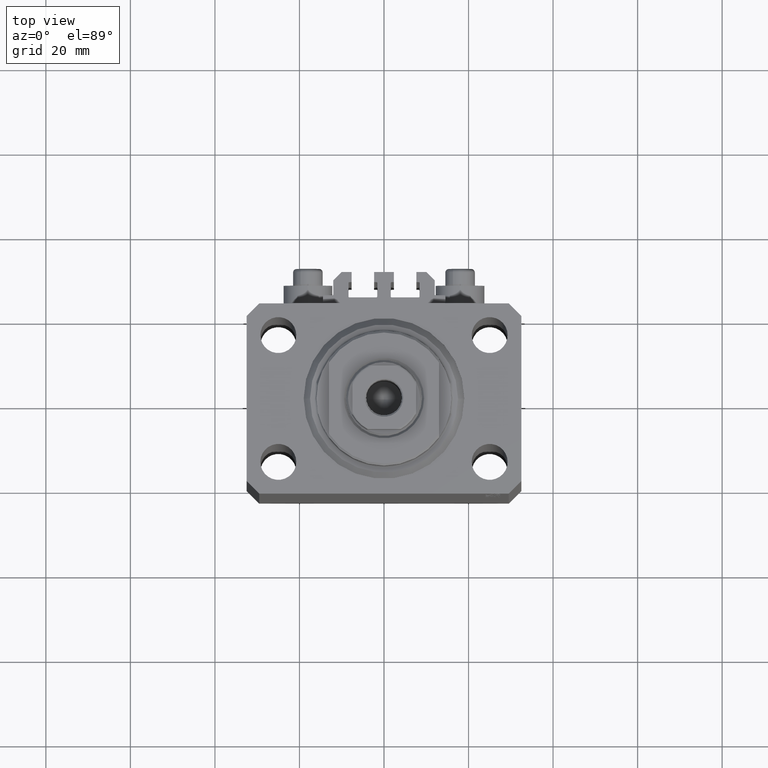
[diagram: clean part render]
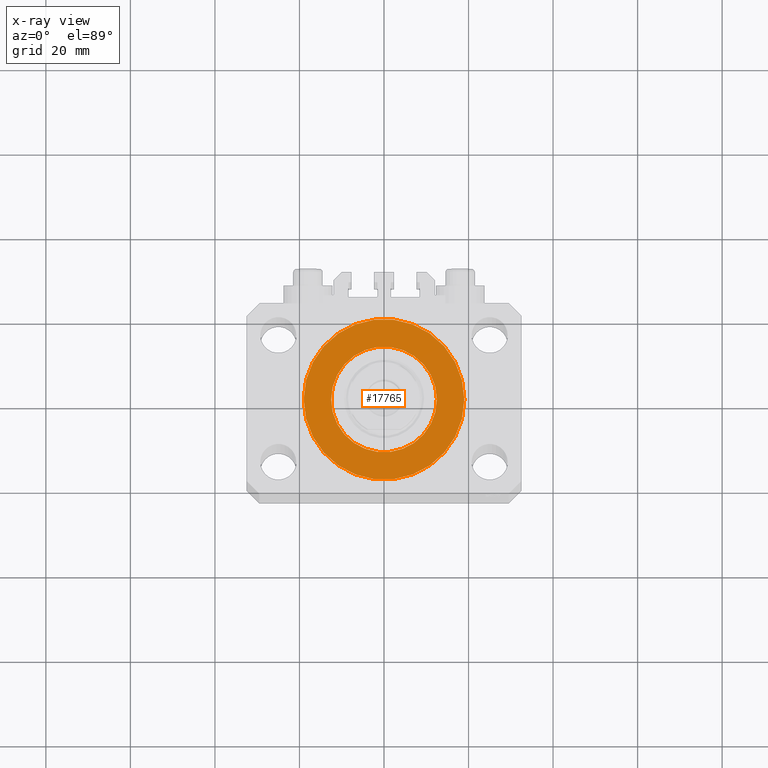
[diagram: x-ray — body ghosted, one internal face saturated and labeled with its STEP entity id]
A machine part, top view, then the same camera in x-ray: the body is ghosted and one INTERNAL B-rep face — a face not visible from any outside direction — is saturated and labeled: STEP entity #17765.
In plain terms, the highlighted planar face has unit normal (0, 0, 1).
Its self-contained STEP definition (entity closure, byte-faithful):
#829 = VERTEX_POINT ( 'NONE', #17329 ) ;
#1723 = DIRECTION ( 'NONE',  ( 1.000000000000000000, 0.000000000000000000, 0.000000000000000000 ) ) ;
#2703 = DIRECTION ( 'NONE',  ( 0.000000000000000000, 0.000000000000000000, 1.000000000000000000 ) ) ;
#5365 = EDGE_LOOP ( 'NONE', ( #8033, #30123 ) ) ;
#5664 = EDGE_CURVE ( 'NONE', #14952, #47219, #6875, .T. ) ;
#6875 = CIRCLE ( 'NONE', #34374, 19.00000000000000000 ) ;
#6959 = FACE_BOUND ( 'NONE', #43257, .T. ) ;
#7236 = CARTESIAN_POINT ( 'NONE',  ( 0.000000000000000000, 0.000000000000000000, -13.99999999999999822 ) ) ;
#8033 = ORIENTED_EDGE ( 'NONE', *, *, #31935, .T. ) ;
#8195 = DIRECTION ( 'NONE',  ( 0.000000000000000000, 0.000000000000000000, 1.000000000000000000 ) ) ;
#8677 = CARTESIAN_POINT ( 'NONE',  ( 19.00000000000000000, 0.000000000000000000, -14.00000000000000000 ) ) ;
#9250 = DIRECTION ( 'NONE',  ( 1.000000000000000000, 0.000000000000000000, 0.000000000000000000 ) ) ;
#9283 = DIRECTION ( 'NONE',  ( 0.000000000000000000, 0.000000000000000000, 1.000000000000000000 ) ) ;
#9902 = CARTESIAN_POINT ( 'NONE',  ( 12.50000000000000000, 0.000000000000000000, -13.99999999999999822 ) ) ;
#10066 = CARTESIAN_POINT ( 'NONE',  ( 0.000000000000000000, 0.000000000000000000, -14.00000000000000000 ) ) ;
#13588 = VERTEX_POINT ( 'NONE', #9902 ) ;
#14899 = AXIS2_PLACEMENT_3D ( 'NONE', #7236, #2703, #17535 ) ;
#14952 = VERTEX_POINT ( 'NONE', #38125 ) ;
#17329 = CARTESIAN_POINT ( 'NONE',  ( -12.50000000000000000, 1.530808498934191521E-15, -13.99999999999999822 ) ) ;
#17490 = DIRECTION ( 'NONE',  ( 0.000000000000000000, 0.000000000000000000, 1.000000000000000000 ) ) ;
#17535 = DIRECTION ( 'NONE',  ( 1.000000000000000000, 0.000000000000000000, 0.000000000000000000 ) ) ;
#17765 = ADVANCED_FACE ( 'NONE', ( #6959, #42858 ), #21083, .T. ) ;
#20525 = ORIENTED_EDGE ( 'NONE', *, *, #40806, .F. ) ;
#21083 = PLANE ( 'NONE',  #41395 ) ;
#21812 = AXIS2_PLACEMENT_3D ( 'NONE', #34271, #8195, #1723 ) ;
#24372 = AXIS2_PLACEMENT_3D ( 'NONE', #45168, #27229, #9250 ) ;
#27229 = DIRECTION ( 'NONE',  ( 0.000000000000000000, 0.000000000000000000, 1.000000000000000000 ) ) ;
#27968 = DIRECTION ( 'NONE',  ( 1.000000000000000000, 0.000000000000000000, 0.000000000000000000 ) ) ;
#30123 = ORIENTED_EDGE ( 'NONE', *, *, #5664, .T. ) ;
#31935 = EDGE_CURVE ( 'NONE', #47219, #14952, #43988, .T. ) ;
#34271 = CARTESIAN_POINT ( 'NONE',  ( 0.000000000000000000, 0.000000000000000000, -14.00000000000000000 ) ) ;
#34374 = AXIS2_PLACEMENT_3D ( 'NONE', #34905, #9283, #27968 ) ;
#34905 = CARTESIAN_POINT ( 'NONE',  ( 0.000000000000000000, 0.000000000000000000, -14.00000000000000000 ) ) ;
#35689 = DIRECTION ( 'NONE',  ( 1.000000000000000000, 0.000000000000000000, -0.000000000000000000 ) ) ;
#36327 = ORIENTED_EDGE ( 'NONE', *, *, #46407, .F. ) ;
#38125 = CARTESIAN_POINT ( 'NONE',  ( -19.00000000000000000, 2.326828918379970970E-15, -14.00000000000000000 ) ) ;
#40165 = CIRCLE ( 'NONE', #14899, 12.50000000000000000 ) ;
#40806 = EDGE_CURVE ( 'NONE', #13588, #829, #44991, .T. ) ;
#41395 = AXIS2_PLACEMENT_3D ( 'NONE', #10066, #17490, #35689 ) ;
#42858 = FACE_OUTER_BOUND ( 'NONE', #5365, .T. ) ;
#43257 = EDGE_LOOP ( 'NONE', ( #20525, #36327 ) ) ;
#43988 = CIRCLE ( 'NONE', #21812, 19.00000000000000000 ) ;
#44991 = CIRCLE ( 'NONE', #24372, 12.50000000000000000 ) ;
#45168 = CARTESIAN_POINT ( 'NONE',  ( 0.000000000000000000, 0.000000000000000000, -13.99999999999999822 ) ) ;
#46407 = EDGE_CURVE ( 'NONE', #829, #13588, #40165, .T. ) ;
#47219 = VERTEX_POINT ( 'NONE', #8677 ) ;